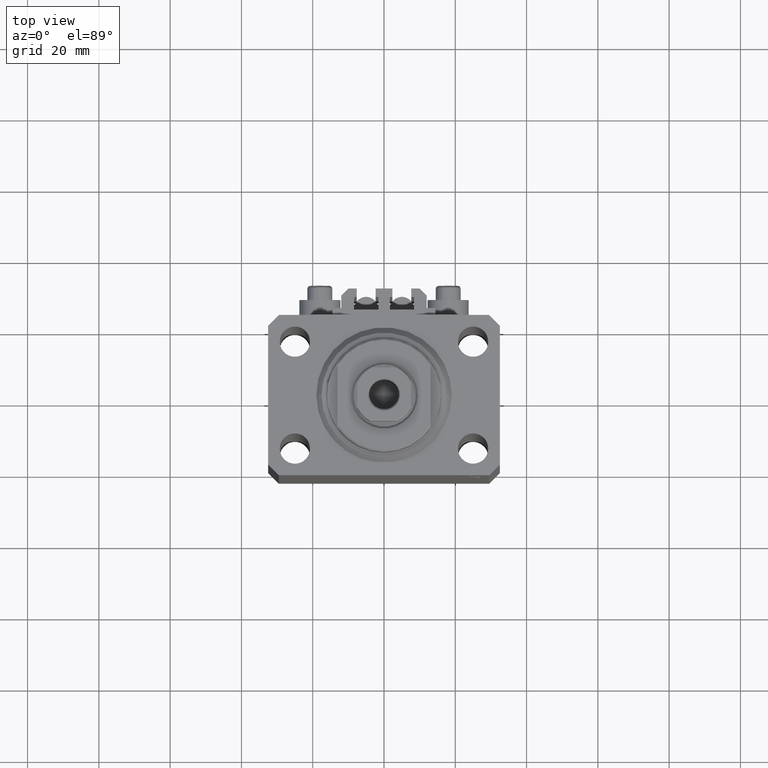
[diagram: clean part render]
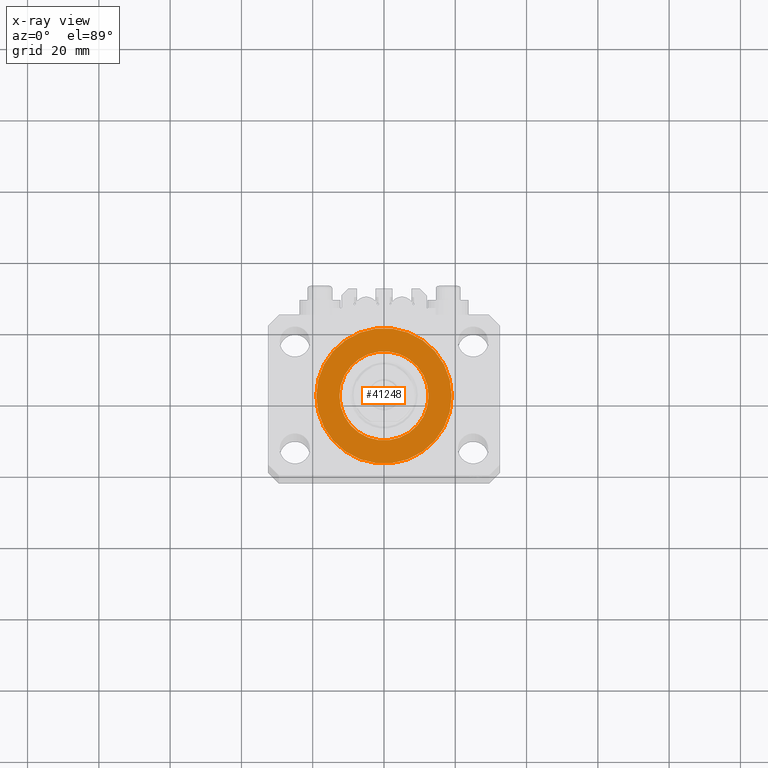
[diagram: x-ray — body ghosted, one internal face saturated and labeled with its STEP entity id]
A machine part, top view, then the same camera in x-ray: the body is ghosted and one INTERNAL B-rep face — a face not visible from any outside direction — is saturated and labeled: STEP entity #41248.
In plain terms, the highlighted planar face has unit normal (0, 0, 1).
Its self-contained STEP definition (entity closure, byte-faithful):
#746 = CARTESIAN_POINT ( 'NONE',  ( 0.000000000000000000, 0.000000000000000000, -13.99999999999999822 ) ) ;
#779 = FACE_OUTER_BOUND ( 'NONE', #15877, .T. ) ;
#1482 = DIRECTION ( 'NONE',  ( 1.000000000000000000, 0.000000000000000000, 0.000000000000000000 ) ) ;
#2545 = DIRECTION ( 'NONE',  ( 1.000000000000000000, 0.000000000000000000, 0.000000000000000000 ) ) ;
#3294 = VERTEX_POINT ( 'NONE', #13287 ) ;
#4393 = DIRECTION ( 'NONE',  ( 0.000000000000000000, 0.000000000000000000, 1.000000000000000000 ) ) ;
#4424 = DIRECTION ( 'NONE',  ( 0.000000000000000000, 0.000000000000000000, 1.000000000000000000 ) ) ;
#4913 = DIRECTION ( 'NONE',  ( 0.000000000000000000, 0.000000000000000000, 1.000000000000000000 ) ) ;
#5124 = EDGE_CURVE ( 'NONE', #30490, #3294, #11620, .T. ) ;
#5887 = EDGE_CURVE ( 'NONE', #30547, #21480, #33451, .T. ) ;
#6263 = DIRECTION ( 'NONE',  ( 0.000000000000000000, 0.000000000000000000, 1.000000000000000000 ) ) ;
#7631 = EDGE_CURVE ( 'NONE', #21480, #30547, #11693, .T. ) ;
#9886 = CARTESIAN_POINT ( 'NONE',  ( -12.50000000000000000, 1.530808498934191521E-15, -13.99999999999999822 ) ) ;
#11620 = CIRCLE ( 'NONE', #38846, 19.00000000000000000 ) ;
#11693 = CIRCLE ( 'NONE', #45952, 12.50000000000000000 ) ;
#12451 = DIRECTION ( 'NONE',  ( 1.000000000000000000, 0.000000000000000000, 0.000000000000000000 ) ) ;
#13287 = CARTESIAN_POINT ( 'NONE',  ( 19.00000000000000000, 0.000000000000000000, -14.00000000000000000 ) ) ;
#13818 = ORIENTED_EDGE ( 'NONE', *, *, #5887, .F. ) ;
#14206 = CARTESIAN_POINT ( 'NONE',  ( 0.000000000000000000, 0.000000000000000000, -14.00000000000000000 ) ) ;
#15755 = CARTESIAN_POINT ( 'NONE',  ( -19.00000000000000000, 2.326828918379970970E-15, -14.00000000000000000 ) ) ;
#15877 = EDGE_LOOP ( 'NONE', ( #40510, #22931 ) ) ;
#17941 = DIRECTION ( 'NONE',  ( 1.000000000000000000, 0.000000000000000000, 0.000000000000000000 ) ) ;
#19989 = EDGE_LOOP ( 'NONE', ( #29209, #13818 ) ) ;
#21024 = AXIS2_PLACEMENT_3D ( 'NONE', #746, #4393, #1482 ) ;
#21480 = VERTEX_POINT ( 'NONE', #46492 ) ;
#22931 = ORIENTED_EDGE ( 'NONE', *, *, #5124, .T. ) ;
#26788 = DIRECTION ( 'NONE',  ( 1.000000000000000000, 0.000000000000000000, -0.000000000000000000 ) ) ;
#29209 = ORIENTED_EDGE ( 'NONE', *, *, #7631, .F. ) ;
#29515 = AXIS2_PLACEMENT_3D ( 'NONE', #34360, #4424, #26788 ) ;
#30490 = VERTEX_POINT ( 'NONE', #15755 ) ;
#30547 = VERTEX_POINT ( 'NONE', #9886 ) ;
#31872 = EDGE_CURVE ( 'NONE', #3294, #30490, #34669, .T. ) ;
#33451 = CIRCLE ( 'NONE', #21024, 12.50000000000000000 ) ;
#34360 = CARTESIAN_POINT ( 'NONE',  ( 0.000000000000000000, 0.000000000000000000, -14.00000000000000000 ) ) ;
#34669 = CIRCLE ( 'NONE', #46367, 19.00000000000000000 ) ;
#34757 = CARTESIAN_POINT ( 'NONE',  ( 0.000000000000000000, 0.000000000000000000, -14.00000000000000000 ) ) ;
#38496 = PLANE ( 'NONE',  #29515 ) ;
#38846 = AXIS2_PLACEMENT_3D ( 'NONE', #34757, #6263, #17941 ) ;
#40510 = ORIENTED_EDGE ( 'NONE', *, *, #31872, .T. ) ;
#41248 = ADVANCED_FACE ( 'NONE', ( #41660, #779 ), #38496, .T. ) ;
#41660 = FACE_BOUND ( 'NONE', #19989, .T. ) ;
#42634 = CARTESIAN_POINT ( 'NONE',  ( 0.000000000000000000, 0.000000000000000000, -13.99999999999999822 ) ) ;
#45952 = AXIS2_PLACEMENT_3D ( 'NONE', #42634, #4913, #12451 ) ;
#46367 = AXIS2_PLACEMENT_3D ( 'NONE', #14206, #47577, #2545 ) ;
#46492 = CARTESIAN_POINT ( 'NONE',  ( 12.50000000000000000, 0.000000000000000000, -13.99999999999999822 ) ) ;
#47577 = DIRECTION ( 'NONE',  ( 0.000000000000000000, 0.000000000000000000, 1.000000000000000000 ) ) ;